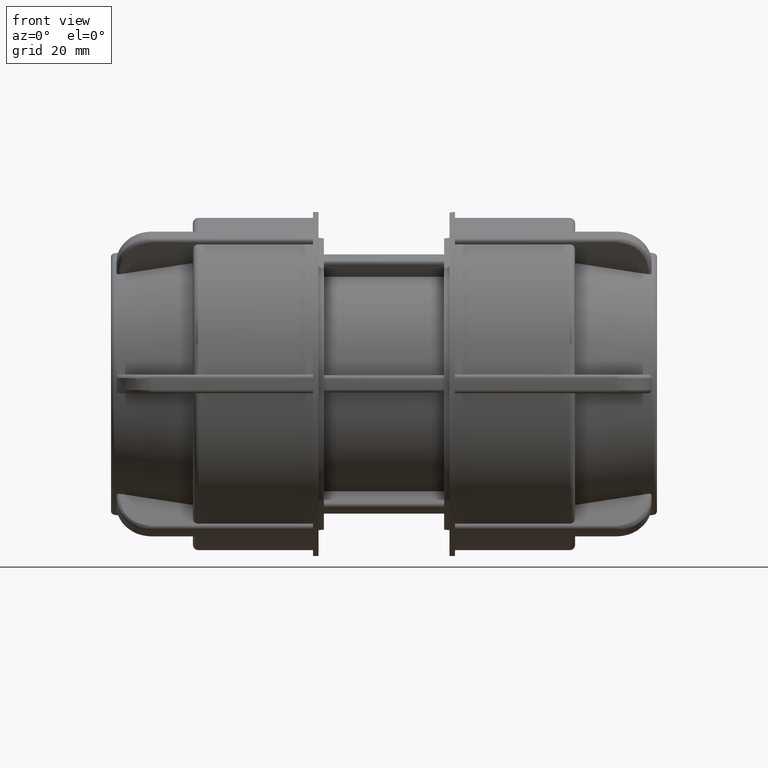
[diagram: clean part render]
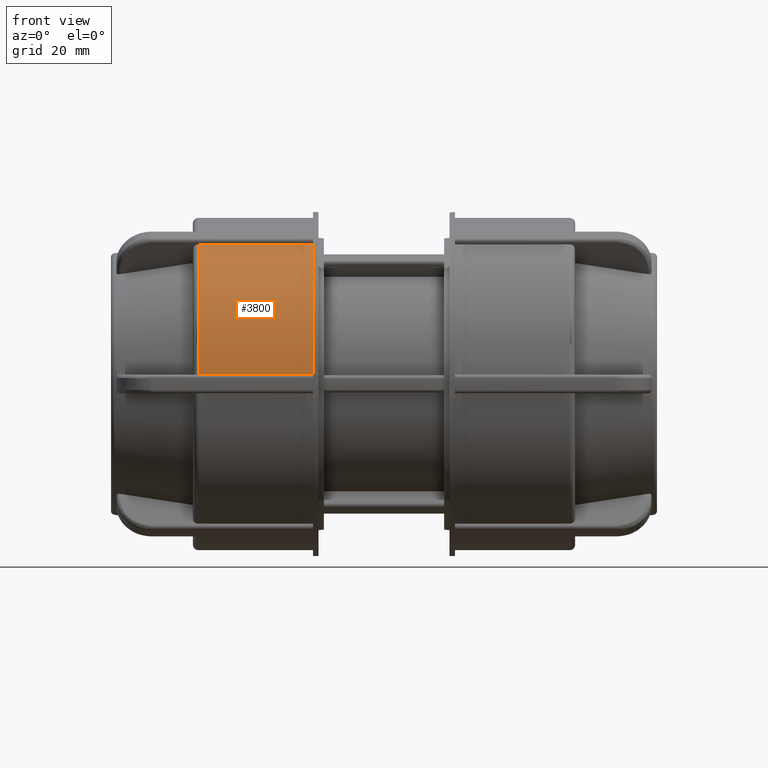
[diagram: same view with one face highlighted and labeled with its STEP entity id]
A machine part, front view. The second image highlights one B-rep face of the part: STEP entity #3800.
In plain terms, the highlighted cylindrical surface (partial cylindrical patch) has radius 44.62 mm, axis along (1, 0, 0).
Its self-contained STEP definition (entity closure, byte-faithful):
#414=FACE_OUTER_BOUND('',#656,.T.);
#656=EDGE_LOOP('',(#2972,#2973,#2974,#2975));
#885=LINE('',#6158,#1113);
#921=LINE('',#6672,#1149);
#1113=VECTOR('',#4757,30.66);
#1149=VECTOR('',#4881,30.66);
#1369=CIRCLE('',#4139,44.62);
#1375=CIRCLE('',#4151,44.62);
#1624=VERTEX_POINT('',#6155);
#1625=VERTEX_POINT('',#6157);
#1684=VERTEX_POINT('',#6660);
#1685=VERTEX_POINT('',#6671);
#2059=EDGE_CURVE('',#1625,#1624,#885,.T.);
#2147=EDGE_CURVE('',#1685,#1684,#921,.T.);
#2166=EDGE_CURVE('',#1625,#1684,#1369,.T.);
#2174=EDGE_CURVE('',#1685,#1624,#1375,.T.);
#2972=ORIENTED_EDGE('',*,*,#2059,.T.);
#2973=ORIENTED_EDGE('',*,*,#2174,.F.);
#2974=ORIENTED_EDGE('',*,*,#2147,.T.);
#2975=ORIENTED_EDGE('',*,*,#2166,.F.);
#3648=CYLINDRICAL_SURFACE('',#4150,44.62);
#3800=ADVANCED_FACE('',(#414),#3648,.T.);
#4139=AXIS2_PLACEMENT_3D('',#6714,#4931,#4932);
#4150=AXIS2_PLACEMENT_3D('',#6738,#4954,#4955);
#4151=AXIS2_PLACEMENT_3D('',#6739,#4956,#4957);
#4757=DIRECTION('',(1.,3.06161699786838E-16,0.));
#4881=DIRECTION('',(-1.,-3.06161699786838E-16,0.));
#4931=DIRECTION('center_axis',(-1.,-3.06161699786838E-16,0.));
#4932=DIRECTION('ref_axis',(3.04801256200318E-16,-1.,1.83697019872103E-16));
#4954=DIRECTION('center_axis',(1.,3.06161699786838E-16,0.));
#4955=DIRECTION('ref_axis',(-3.3251542972004E-16,1.,0.));
#4956=DIRECTION('center_axis',(1.,3.06161699786838E-16,0.));
#4957=DIRECTION('ref_axis',(0.,0.,-1.));
#6155=CARTESIAN_POINT('',(-18.98,-44.5499090908163,2.50000000000001));
#6157=CARTESIAN_POINT('',(-49.64,-44.5499090908164,2.50000000000001));
#6158=CARTESIAN_POINT('',(-35.04,-44.5499090908163,2.50000000000001));
#6660=CARTESIAN_POINT('',(-49.64,-24.4400180548693,37.3313530089343));
#6671=CARTESIAN_POINT('',(-18.98,-24.4400180548692,37.3313530089343));
#6672=CARTESIAN_POINT('',(-35.04,-24.4400180548693,37.3313530089343));
#6714=CARTESIAN_POINT('Origin',(-49.64,-1.51978667774187E-14,0.));
#6738=CARTESIAN_POINT('Origin',(-35.04,-1.07279059605308E-14,0.));
#6739=CARTESIAN_POINT('Origin',(-18.98,-5.81094906195419E-15,0.));